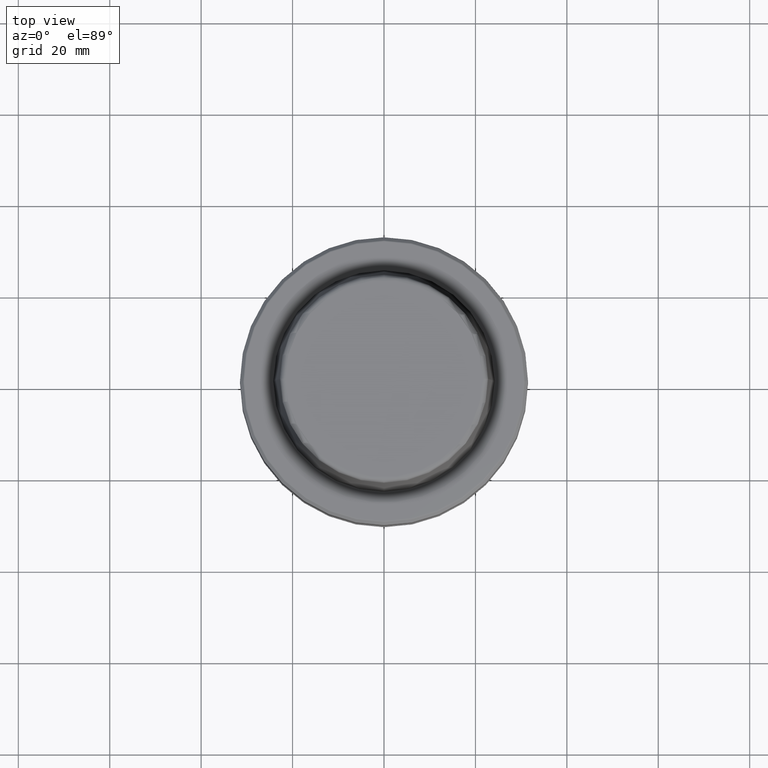
[diagram: clean part render]
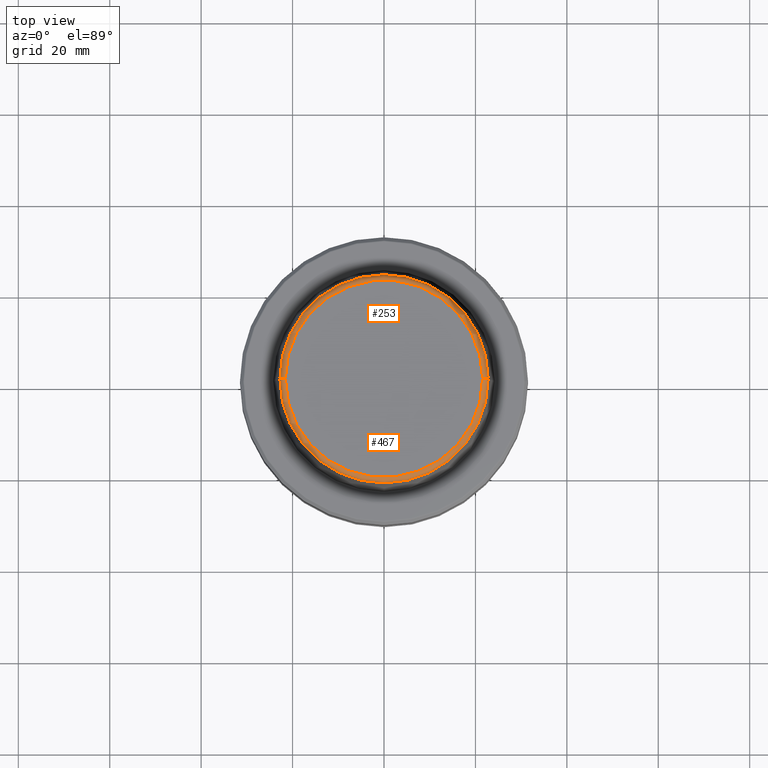
[diagram: same view with one multi-face feature highlighted, each face labeled with its STEP entity id]
A machine part, top view. The highlighted faces form ONE feature: a constant-radius fillet chain: 2 tangent blend faces with common blend radius 1.2 mm. The faces share edges in the B-rep.
Their STEP definitions:
[1] entity #253 (Torus):
#6 = VERTEX_POINT ( 'NONE', #15 ) ;
#15 = CARTESIAN_POINT ( 'NONE',  ( 21.58108272732117100, 0.0000000000000000000, 31.89999999999999900 ) ) ;
#98 = TOROIDAL_SURFACE ( 'NONE', #707, 21.58108272732117100, 1.200000000000003100 ) ;
#111 = DIRECTION ( 'NONE',  ( 0.0000000000000000000, 0.0000000000000000000, -1.000000000000000000 ) ) ;
#139 = CIRCLE ( 'NONE', #568, 22.77957961851797100 ) ;
#148 = DIRECTION ( 'NONE',  ( 1.000000000000000000, 0.0000000000000000000, 0.0000000000000000000 ) ) ;
#183 = EDGE_CURVE ( 'NONE', #808, #1193, #874, .T. ) ;
#185 = CARTESIAN_POINT ( 'NONE',  ( -21.58108272732117100, 2.642920388414810300E-015, 30.69999999999999200 ) ) ;
#209 = DIRECTION ( 'NONE',  ( -0.0000000000000000000, -0.0000000000000000000, 1.000000000000000000 ) ) ;
#250 = CARTESIAN_POINT ( 'NONE',  ( -21.58108272732117100, 2.716307157494421400E-015, 31.89999999999999900 ) ) ;
#253 = ADVANCED_FACE ( 'NONE', ( #1155 ), #98, .T. ) ;
#279 = CARTESIAN_POINT ( 'NONE',  ( 21.58108272732117100, 0.0000000000000000000, 30.69999999999999200 ) ) ;
#456 = EDGE_CURVE ( 'NONE', #6, #1193, #1032, .T. ) ;
#461 = DIRECTION ( 'NONE',  ( -1.000000000000000000, 1.224646799147353200E-016, 0.0000000000000000000 ) ) ;
#488 = DIRECTION ( 'NONE',  ( 0.0000000000000000000, -1.000000000000000000, 0.0000000000000000000 ) ) ;
#518 = AXIS2_PLACEMENT_3D ( 'NONE', #279, #488, #111 ) ;
#565 = DIRECTION ( 'NONE',  ( -0.0000000000000000000, -0.0000000000000000000, 1.000000000000000000 ) ) ;
#568 = AXIS2_PLACEMENT_3D ( 'NONE', #795, #565, #148 ) ;
#614 = DIRECTION ( 'NONE',  ( 1.000000000000000000, 0.0000000000000000000, 0.0000000000000000000 ) ) ;
#623 = VERTEX_POINT ( 'NONE', #1095 ) ;
#660 = ORIENTED_EDGE ( 'NONE', *, *, #183, .T. ) ;
#684 = AXIS2_PLACEMENT_3D ( 'NONE', #888, #209, #614 ) ;
#707 = AXIS2_PLACEMENT_3D ( 'NONE', #844, #1228, #1259 ) ;
#728 = ORIENTED_EDGE ( 'NONE', *, *, #456, .F. ) ;
#795 = CARTESIAN_POINT ( 'NONE',  ( 0.0000000000000000000, 0.0000000000000000000, 30.76004333261571900 ) ) ;
#808 = VERTEX_POINT ( 'NONE', #1020 ) ;
#844 = CARTESIAN_POINT ( 'NONE',  ( 0.0000000000000000000, 0.0000000000000000000, 30.69999999999999200 ) ) ;
#874 = CIRCLE ( 'NONE', #1243, 1.200000000000003100 ) ;
#888 = CARTESIAN_POINT ( 'NONE',  ( 0.0000000000000000000, 0.0000000000000000000, 31.89999999999999900 ) ) ;
#900 = EDGE_CURVE ( 'NONE', #623, #6, #1109, .T. ) ;
#912 = EDGE_LOOP ( 'NONE', ( #1153, #660, #728, #1024 ) ) ;
#1020 = CARTESIAN_POINT ( 'NONE',  ( -22.77957961851797100, 0.0000000000000000000, 30.76004333261571900 ) ) ;
#1024 = ORIENTED_EDGE ( 'NONE', *, *, #900, .F. ) ;
#1032 = CIRCLE ( 'NONE', #684, 21.58108272732117100 ) ;
#1089 = DIRECTION ( 'NONE',  ( 1.224646799147353200E-016, 1.000000000000000000, 0.0000000000000000000 ) ) ;
#1095 = CARTESIAN_POINT ( 'NONE',  ( 22.77957961851797100, 2.876386432489616700E-015, 30.76004333261571900 ) ) ;
#1109 = CIRCLE ( 'NONE', #518, 1.200000000000003100 ) ;
#1153 = ORIENTED_EDGE ( 'NONE', *, *, #1185, .T. ) ;
#1155 = FACE_OUTER_BOUND ( 'NONE', #912, .T. ) ;
#1185 = EDGE_CURVE ( 'NONE', #623, #808, #139, .T. ) ;
#1193 = VERTEX_POINT ( 'NONE', #250 ) ;
#1228 = DIRECTION ( 'NONE',  ( -0.0000000000000000000, -0.0000000000000000000, 1.000000000000000000 ) ) ;
#1243 = AXIS2_PLACEMENT_3D ( 'NONE', #185, #1089, #461 ) ;
#1259 = DIRECTION ( 'NONE',  ( 1.000000000000000000, 0.0000000000000000000, 0.0000000000000000000 ) ) ;
[2] entity #467 (Torus):
#6 = VERTEX_POINT ( 'NONE', #15 ) ;
#15 = CARTESIAN_POINT ( 'NONE',  ( 21.58108272732117100, 0.0000000000000000000, 31.89999999999999900 ) ) ;
#21 = AXIS2_PLACEMENT_3D ( 'NONE', #1113, #596, #228 ) ;
#56 = EDGE_LOOP ( 'NONE', ( #280, #1026, #923, #1205 ) ) ;
#111 = DIRECTION ( 'NONE',  ( 0.0000000000000000000, 0.0000000000000000000, -1.000000000000000000 ) ) ;
#119 = CIRCLE ( 'NONE', #846, 21.58108272732117100 ) ;
#183 = EDGE_CURVE ( 'NONE', #808, #1193, #874, .T. ) ;
#185 = CARTESIAN_POINT ( 'NONE',  ( -21.58108272732117100, 2.642920388414810300E-015, 30.69999999999999200 ) ) ;
#228 = DIRECTION ( 'NONE',  ( 1.000000000000000000, 0.0000000000000000000, 0.0000000000000000000 ) ) ;
#250 = CARTESIAN_POINT ( 'NONE',  ( -21.58108272732117100, 2.716307157494421400E-015, 31.89999999999999900 ) ) ;
#279 = CARTESIAN_POINT ( 'NONE',  ( 21.58108272732117100, 0.0000000000000000000, 30.69999999999999200 ) ) ;
#280 = ORIENTED_EDGE ( 'NONE', *, *, #183, .F. ) ;
#374 = DIRECTION ( 'NONE',  ( 1.000000000000000000, 0.0000000000000000000, 0.0000000000000000000 ) ) ;
#452 = CARTESIAN_POINT ( 'NONE',  ( 0.0000000000000000000, 0.0000000000000000000, 30.69999999999999200 ) ) ;
#461 = DIRECTION ( 'NONE',  ( -1.000000000000000000, 1.224646799147353200E-016, 0.0000000000000000000 ) ) ;
#467 = ADVANCED_FACE ( 'NONE', ( #1055 ), #1260, .T. ) ;
#483 = DIRECTION ( 'NONE',  ( -0.0000000000000000000, -0.0000000000000000000, 1.000000000000000000 ) ) ;
#488 = DIRECTION ( 'NONE',  ( 0.0000000000000000000, -1.000000000000000000, 0.0000000000000000000 ) ) ;
#518 = AXIS2_PLACEMENT_3D ( 'NONE', #279, #488, #111 ) ;
#596 = DIRECTION ( 'NONE',  ( -0.0000000000000000000, -0.0000000000000000000, 1.000000000000000000 ) ) ;
#623 = VERTEX_POINT ( 'NONE', #1095 ) ;
#721 = DIRECTION ( 'NONE',  ( -0.0000000000000000000, -0.0000000000000000000, 1.000000000000000000 ) ) ;
#808 = VERTEX_POINT ( 'NONE', #1020 ) ;
#812 = AXIS2_PLACEMENT_3D ( 'NONE', #452, #721, #1015 ) ;
#846 = AXIS2_PLACEMENT_3D ( 'NONE', #1085, #483, #374 ) ;
#874 = CIRCLE ( 'NONE', #1243, 1.200000000000003100 ) ;
#900 = EDGE_CURVE ( 'NONE', #623, #6, #1109, .T. ) ;
#923 = ORIENTED_EDGE ( 'NONE', *, *, #900, .T. ) ;
#935 = EDGE_CURVE ( 'NONE', #1193, #6, #119, .T. ) ;
#1015 = DIRECTION ( 'NONE',  ( 1.000000000000000000, 0.0000000000000000000, 0.0000000000000000000 ) ) ;
#1020 = CARTESIAN_POINT ( 'NONE',  ( -22.77957961851797100, 0.0000000000000000000, 30.76004333261571900 ) ) ;
#1026 = ORIENTED_EDGE ( 'NONE', *, *, #1059, .T. ) ;
#1055 = FACE_OUTER_BOUND ( 'NONE', #56, .T. ) ;
#1059 = EDGE_CURVE ( 'NONE', #808, #623, #1223, .T. ) ;
#1085 = CARTESIAN_POINT ( 'NONE',  ( 0.0000000000000000000, 0.0000000000000000000, 31.89999999999999900 ) ) ;
#1089 = DIRECTION ( 'NONE',  ( 1.224646799147353200E-016, 1.000000000000000000, 0.0000000000000000000 ) ) ;
#1095 = CARTESIAN_POINT ( 'NONE',  ( 22.77957961851797100, 2.876386432489616700E-015, 30.76004333261571900 ) ) ;
#1109 = CIRCLE ( 'NONE', #518, 1.200000000000003100 ) ;
#1113 = CARTESIAN_POINT ( 'NONE',  ( 0.0000000000000000000, 0.0000000000000000000, 30.76004333261571900 ) ) ;
#1193 = VERTEX_POINT ( 'NONE', #250 ) ;
#1205 = ORIENTED_EDGE ( 'NONE', *, *, #935, .F. ) ;
#1223 = CIRCLE ( 'NONE', #21, 22.77957961851797100 ) ;
#1243 = AXIS2_PLACEMENT_3D ( 'NONE', #185, #1089, #461 ) ;
#1260 = TOROIDAL_SURFACE ( 'NONE', #812, 21.58108272732117100, 1.200000000000003100 ) ;